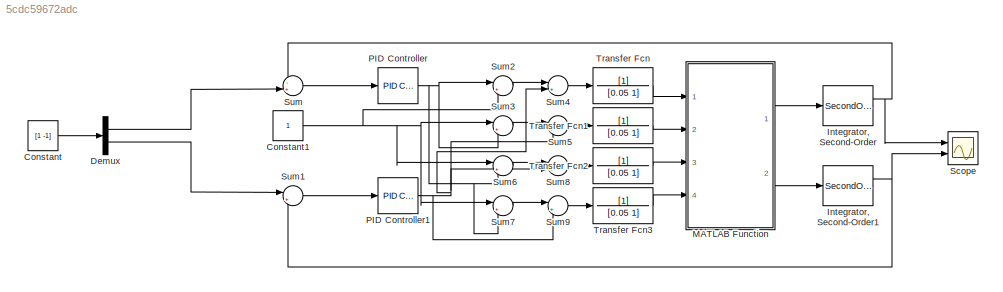
MODEL slx_5cdc59672adc
KIND model
CONFIG AbsTol = auto
CONFIG EnableMultiTasking = off
CONFIG FixedStep = auto
CONFIG MaxStep = auto
CONFIG MinStep = auto
CONFIG RelTol = 1e-3
CONFIG SampleTimeConstraint = Unconstrained
CONFIG Solver = VariableStepAuto
CONFIG SolverName = VariableStepAuto
CONFIG StartTime = 0.0
CONFIG StopTime = 10.0
BLOCK [Constant] Constant
  Value = [1 -1]
BLOCK [Constant] Constant1
BLOCK [Demux] Demux
  DisplayOption = bar
  Outputs = 2
  Ports = [1, 2]
BLOCK [SecondOrderIntegrator] Integrator, Second-Order
  Ports = [1, 2]
BLOCK [SecondOrderIntegrator] Integrator, Second-Order1
  Ports = [1, 2]
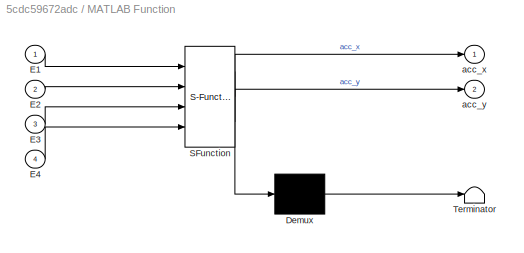
BLOCK [SubSystem] MATLAB Function
  ErrorFcn = Stateflow.Translate.translate
  PermitHierarchicalResolution = ExplicitOnly
  Ports = [4, 2]
  RequestExecContextInheritance = off
  SFBlockType = MATLAB Function
  TreatAsAtomicUnit = on
BLOCK [Demux] MATLAB Function/ Demux 
  Outputs = 1
  Ports = [1, 1]
BLOCK [S-Function] MATLAB Function/ SFunction 
  EnableBusSupport = on
  FunctionName = sf_sfun
  PortCounts = [4 3]
  Ports = [4, 3]
  SFcnIsStateOwnerBlock = off
  SFunctionDeploymentMode = off
  Tag = Stateflow S-Function 2
BLOCK [Terminator] MATLAB Function/ Terminator 
BLOCK [Inport] MATLAB Function/E1
  IconDisplay = Port number
BLOCK [Inport] MATLAB Function/E2
  IconDisplay = Port number
  Port = 2
BLOCK [Inport] MATLAB Function/E3
  IconDisplay = Port number
  Port = 3
BLOCK [Inport] MATLAB Function/E4
  IconDisplay = Port number
  Port = 4
BLOCK [Outport] MATLAB Function/acc_x
  IconDisplay = Port number
BLOCK [Outport] MATLAB Function/acc_y
  IconDisplay = Port number
  Port = 2
BLOCK [Reference] PID Controller  REF=simulink/Continuous/PID Controller
  Ports = [1, 1]
  SourceBlock = simulink/Continuous/PID Controller
  SourceProductBaseCode = SL
  SourceProductName = Simulink
  SourceType = PID 1dof
BLOCK [Reference] PID Controller1  REF=simulink/Continuous/PID Controller
  Ports = [1, 1]
  SourceBlock = simulink/Continuous/PID Controller
  SourceProductBaseCode = SL
  SourceProductName = Simulink
  SourceType = PID 1dof
BLOCK [Scope] Scope
  Floating = off
  NumInputPorts = 2
  Ports = [2]
  ScopeSpecificationString = Simulink.scopes.TimeScopeBlockCfg('CurrentConfiguration', extmgr.ConfigurationSet(extmgr.Configuration('Core','General UI',true),extmgr.Configuration('Core','Source UI',true),extmgr.Configuration('Sources','WiredSimulink',true),extmgr.Configuration('Visuals','Time Domain',true,'SerializedDisplays',{struct('MinYLimReal','-1.536','MaxYLimReal','1.46736','YLabelReal','','MinYLimMag','0.00000','MaxYLi...<+1423ch>
BLOCK [Sum] Sum
  IconShape = round
  InputSameDT = off
  Inputs = -+|
  OutDataTypeStr = Inherit: Inherit via internal rule
  Ports = [2, 1]
  SaturateOnIntegerOverflow = off
BLOCK [Sum] Sum1
  IconShape = round
  InputSameDT = off
  Inputs = |+-
  OutDataTypeStr = Inherit: Inherit via internal rule
  Ports = [2, 1]
  SaturateOnIntegerOverflow = off
BLOCK [Sum] Sum2
  IconShape = round
  InputSameDT = off
  Inputs = |++
  OutDataTypeStr = Inherit: Inherit via internal rule
  Ports = [2, 1]
  SaturateOnIntegerOverflow = off
BLOCK [Sum] Sum3
  IconShape = round
  InputSameDT = off
  Inputs = |++
  OutDataTypeStr = Inherit: Inherit via internal rule
  Ports = [2, 1]
  SaturateOnIntegerOverflow = off
BLOCK [Sum] Sum4
  IconShape = round
  InputSameDT = off
  Inputs = |++
  OutDataTypeStr = Inherit: Inherit via internal rule
  Ports = [2, 1]
  SaturateOnIntegerOverflow = off
BLOCK [Sum] Sum5
  IconShape = round
  InputSameDT = off
  Inputs = |+-
  OutDataTypeStr = Inherit: Inherit via internal rule
  Ports = [2, 1]
  SaturateOnIntegerOverflow = off
BLOCK [Sum] Sum6
  IconShape = round
  InputSameDT = off
  Inputs = |+-
  OutDataTypeStr = Inherit: Inherit via internal rule
  Ports = [2, 1]
  SaturateOnIntegerOverflow = off
BLOCK [Sum] Sum7
  IconShape = round
  InputSameDT = off
  Inputs = |+-
  OutDataTypeStr = Inherit: Inherit via internal rule
  Ports = [2, 1]
  SaturateOnIntegerOverflow = off
BLOCK [Sum] Sum8
  IconShape = round
  InputSameDT = off
  Inputs = |+-
  OutDataTypeStr = Inherit: Inherit via internal rule
  Ports = [2, 1]
  SaturateOnIntegerOverflow = off
BLOCK [Sum] Sum9
  IconShape = round
  InputSameDT = off
  Inputs = |++
  OutDataTypeStr = Inherit: Inherit via internal rule
  Ports = [2, 1]
  SaturateOnIntegerOverflow = off
BLOCK [TransferFcn] Transfer Fcn
  Denominator = [0.05 1]
BLOCK [TransferFcn] Transfer Fcn1
  Denominator = [0.05 1]
BLOCK [TransferFcn] Transfer Fcn2
  Denominator = [0.05 1]
BLOCK [TransferFcn] Transfer Fcn3
  Denominator = [0.05 1]
NET Constant1:1 -> Sum2:2, Sum3:1, Sum6:1, Sum7:1
LINE Constant:1 -> Demux:1
LINE Demux:1 -> Sum:2
LINE Demux:2 -> Sum1:1
NET Integrator, Second-Order1:1 -> Scope:2, Sum1:2
NET Integrator, Second-Order:1 -> Scope:1, Sum:1
LINE MATLAB Function:1 -> Integrator, Second-Order:1
LINE MATLAB Function:2 -> Integrator, Second-Order1:1
NET PID Controller1:1 -> Sum4:2, Sum5:2, Sum8:2, Sum9:2
NET PID Controller:1 -> Sum2:1, Sum3:2, Sum6:2, Sum7:2
LINE Sum1:1 -> PID Controller1:1
LINE Sum2:1 -> Sum4:1
LINE Sum3:1 -> Sum5:1
LINE Sum4:1 -> Transfer Fcn:1
LINE Sum5:1 -> Transfer Fcn1:1
LINE Sum6:1 -> Sum8:1
LINE Sum7:1 -> Sum9:1
LINE Sum8:1 -> Transfer Fcn2:1
LINE Sum9:1 -> Transfer Fcn3:1
LINE Sum:1 -> PID Controller:1
LINE Transfer Fcn1:1 -> MATLAB Function:2
LINE Transfer Fcn2:1 -> MATLAB Function:3
LINE Transfer Fcn3:1 -> MATLAB Function:4
LINE Transfer Fcn:1 -> MATLAB Function:1
note: NET lines group one-source signal fan-out (src -> all destinations, sorted); 1:1 wires keep LINE
CHART MATLAB Function states=1 transitions=1
  STATE_LABEL 'eML_blk_kernel()'
  STATE_LABEL 'SCRIPT:\nfunction [acc_x, acc_y] = fcn(E1,E2,E3,E4)\n\nacc_x = E3 + E4 - E1 - E2;\nacc_y = E1 + E4 - E2 - E4;\nend\n'
